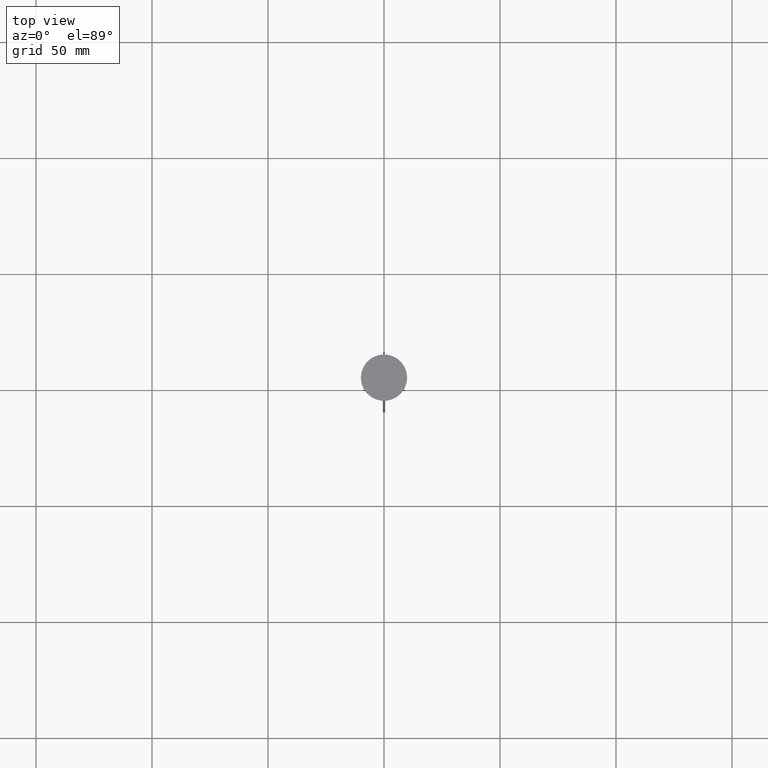
[diagram: clean part render]
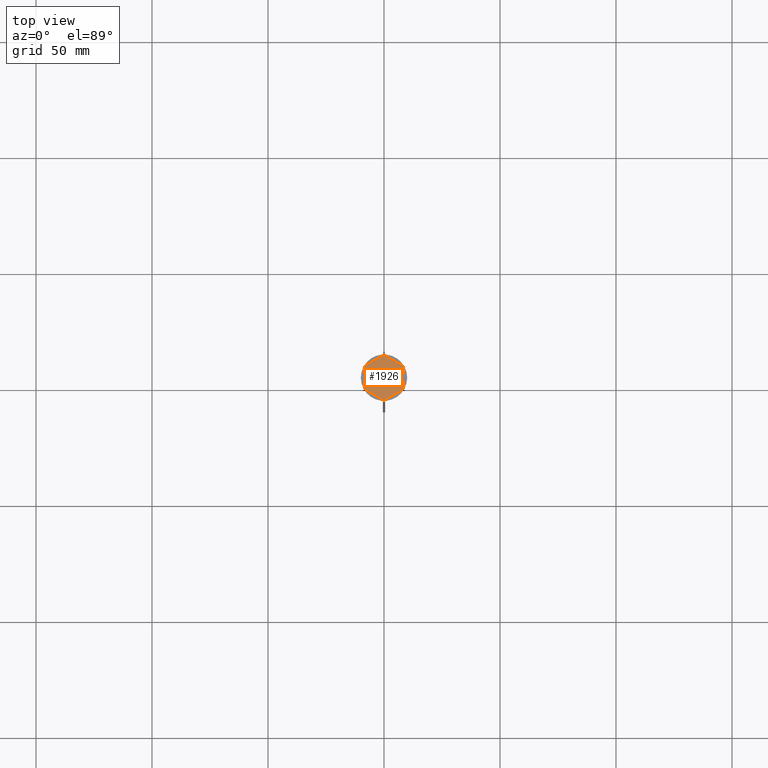
[diagram: same view with one face highlighted and labeled with its STEP entity id]
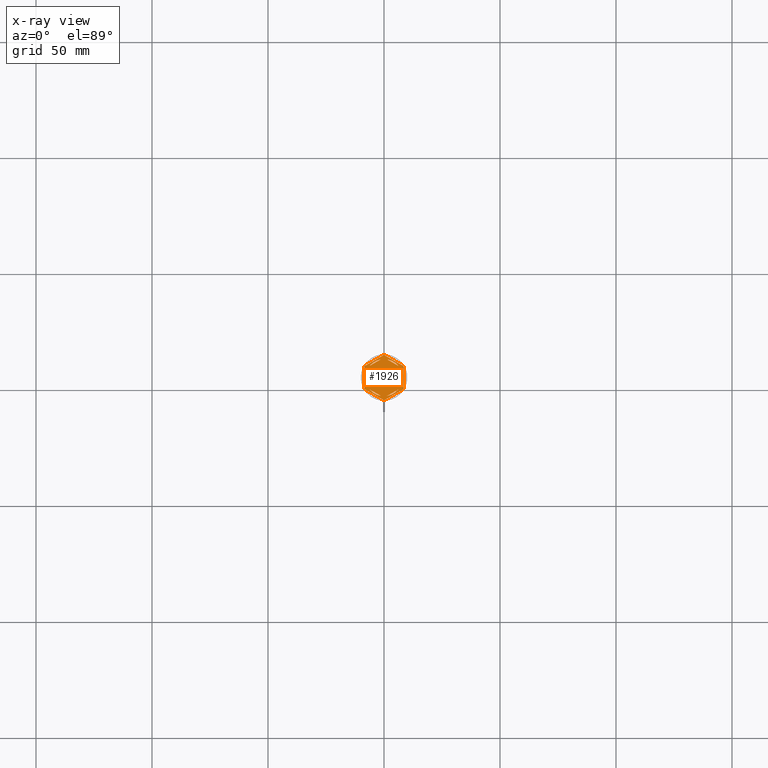
[diagram: x-ray of the same camera — body ghosted, the highlighted face saturated]
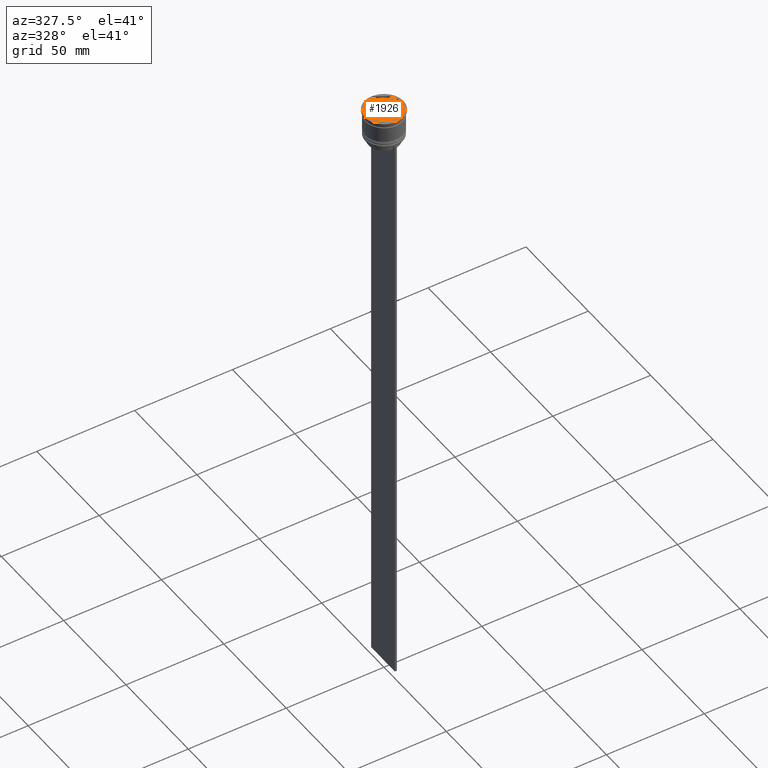
[diagram: same view with one face highlighted and labeled with its STEP entity id]
A machine part, top view. The second image highlights one B-rep face of the part: STEP entity #1926.
The next image is the same camera in x-ray: the body ghosted, the highlighted face saturated — about 0% of this face is hidden behind the body in this view.
A second angle (auxiliary view) of the same face is appended — the face is thin or edge-on in the first view.
In plain terms, the highlighted planar face has unit normal (0, 0, 1).
Its self-contained STEP definition (entity closure, byte-faithful):
#16 = ORIENTED_EDGE ( 'NONE', *, *, #903, .F. ) ;
#17 = EDGE_CURVE ( 'NONE', #455, #744, #2281, .T. ) ;
#34 = VECTOR ( 'NONE', #1490, 1000.000000000000114 ) ;
#56 = DIRECTION ( 'NONE',  ( 1.000000000000000000, 0.000000000000000000, 0.000000000000000000 ) ) ;
#78 = VERTEX_POINT ( 'NONE', #1576 ) ;
#90 = ORIENTED_EDGE ( 'NONE', *, *, #2183, .T. ) ;
#119 = VERTEX_POINT ( 'NONE', #1361 ) ;
#130 = LINE ( 'NONE', #708, #848 ) ;
#134 = VERTEX_POINT ( 'NONE', #310 ) ;
#141 = EDGE_CURVE ( 'NONE', #648, #1136, #1371, .T. ) ;
#148 = ORIENTED_EDGE ( 'NONE', *, *, #2667, .F. ) ;
#173 = EDGE_CURVE ( 'NONE', #329, #1937, #347, .T. ) ;
#178 = DIRECTION ( 'NONE',  ( -0.000000000000000000, -0.000000000000000000, -1.000000000000000000 ) ) ;
#185 = VERTEX_POINT ( 'NONE', #1588 ) ;
#211 = EDGE_CURVE ( 'NONE', #1826, #1136, #893, .T. ) ;
#227 = ORIENTED_EDGE ( 'NONE', *, *, #141, .T. ) ;
#248 = DIRECTION ( 'NONE',  ( 0.000000000000000000, 0.000000000000000000, 1.000000000000000000 ) ) ;
#262 = CARTESIAN_POINT ( 'NONE',  ( 0.000000000000000000, 0.000000000000000000, -1.000000000000000000 ) ) ;
#277 = DIRECTION ( 'NONE',  ( 1.000000000000000000, 0.000000000000000000, 0.000000000000000000 ) ) ;
#310 = CARTESIAN_POINT ( 'NONE',  ( 8.500000000000000000, -4.673328578219146934, -1.000000000000000000 ) ) ;
#313 = EDGE_CURVE ( 'NONE', #78, #2582, #381, .T. ) ;
#329 = VERTEX_POINT ( 'NONE', #2048 ) ;
#336 = VERTEX_POINT ( 'NONE', #2253 ) ;
#347 = LINE ( 'NONE', #1774, #1248 ) ;
#352 = DIRECTION ( 'NONE',  ( 0.8660254037844387076, -0.4999999999999997780, 0.000000000000000000 ) ) ;
#367 = ORIENTED_EDGE ( 'NONE', *, *, #1886, .F. ) ;
#381 = CIRCLE ( 'NONE', #1417, 9.699999999999990408 ) ;
#395 = FACE_OUTER_BOUND ( 'NONE', #740, .T. ) ;
#405 = CARTESIAN_POINT ( 'NONE',  ( 8.297221268969593666, 5.024551643058155825, -1.000000000000000000 ) ) ;
#421 = CARTESIAN_POINT ( 'NONE',  ( -7.500000000000000000, 2.783882181415010759, -1.000000000000000888 ) ) ;
#431 = ORIENTED_EDGE ( 'NONE', *, *, #1138, .F. ) ;
#433 = CIRCLE ( 'NONE', #988, 8.000000000000000000 ) ;
#455 = VERTEX_POINT ( 'NONE', #929 ) ;
#470 = EDGE_CURVE ( 'NONE', #1264, #1970, #1678, .T. ) ;
#479 = CARTESIAN_POINT ( 'NONE',  ( 8.297221268969593666, -5.024551643058152273, -1.000000000000000000 ) ) ;
#538 = VERTEX_POINT ( 'NONE', #1182 ) ;
#549 = ORIENTED_EDGE ( 'NONE', *, *, #2354, .F. ) ;
#551 = CARTESIAN_POINT ( 'NONE',  ( 0.000000000000000000, 0.000000000000000000, -1.000000000000000000 ) ) ;
#553 = CIRCLE ( 'NONE', #983, 8.000000000000000000 ) ;
#555 = LINE ( 'NONE', #1770, #1122 ) ;
#557 = AXIS2_PLACEMENT_3D ( 'NONE', #1445, #2458, #1623 ) ;
#574 = EDGE_CURVE ( 'NONE', #2342, #185, #555, .T. ) ;
#575 = DIRECTION ( 'NONE',  ( 1.000000000000000000, 2.486899575160350651E-14, 0.000000000000000000 ) ) ;
#580 = CARTESIAN_POINT ( 'NONE',  ( -6.160912690248241397, 5.103249437675783540, -1.000000000000000888 ) ) ;
#583 = DIRECTION ( 'NONE',  ( -0.000000000000000000, -0.000000000000000000, -1.000000000000000000 ) ) ;
#584 = CARTESIAN_POINT ( 'NONE',  ( 0.000000000000000000, 0.000000000000000000, -1.000000000000000000 ) ) ;
#598 = AXIS2_PLACEMENT_3D ( 'NONE', #1259, #2277, #655 ) ;
#618 = FACE_BOUND ( 'NONE', #1097, .T. ) ;
#626 = DIRECTION ( 'NONE',  ( -2.003086131649545704E-16, -1.000000000000000000, 0.000000000000000000 ) ) ;
#627 = VERTEX_POINT ( 'NONE', #580 ) ;
#648 = VERTEX_POINT ( 'NONE', #405 ) ;
#652 = LINE ( 'NONE', #2507, #2280 ) ;
#654 = CARTESIAN_POINT ( 'NONE',  ( 0.000000000000000000, 0.000000000000000000, -1.000000000000000000 ) ) ;
#655 = DIRECTION ( 'NONE',  ( 1.000000000000000000, 0.000000000000000000, 0.000000000000000000 ) ) ;
#668 = DIRECTION ( 'NONE',  ( 1.000000000000000000, 0.000000000000000000, 0.000000000000000000 ) ) ;
#673 = EDGE_CURVE ( 'NONE', #134, #834, #1253, .T. ) ;
#686 = VECTOR ( 'NONE', #1768, 1000.000000000000000 ) ;
#695 = ORIENTED_EDGE ( 'NONE', *, *, #574, .F. ) ;
#699 = EDGE_CURVE ( 'NONE', #78, #1644, #1055, .T. ) ;
#708 = CARTESIAN_POINT ( 'NONE',  ( 8.729740977282959667E-16, -9.814954576223637872, -1.000000000000000000 ) ) ;
#740 = EDGE_LOOP ( 'NONE', ( #2403, #871, #227, #2269, #1828, #1673, #1622, #2324, #90, #148, #2096, #2164 ) ) ;
#744 = VERTEX_POINT ( 'NONE', #2101 ) ;
#745 = CARTESIAN_POINT ( 'NONE',  ( -1.339087309751759047, 7.887131619090796519, -1.000000000000000888 ) ) ;
#756 = VECTOR ( 'NONE', #2474, 999.9999999999998863 ) ;
#786 = FACE_BOUND ( 'NONE', #2138, .T. ) ;
#810 = VERTEX_POINT ( 'NONE', #1086 ) ;
#818 = PLANE ( 'NONE',  #2240 ) ;
#834 = VERTEX_POINT ( 'NONE', #479 ) ;
#842 = FACE_BOUND ( 'NONE', #2071, .T. ) ;
#843 = EDGE_CURVE ( 'NONE', #1937, #538, #852, .T. ) ;
#848 = VECTOR ( 'NONE', #1159, 1000.000000000000227 ) ;
#852 = CIRCLE ( 'NONE', #2375, 8.000000000000000000 ) ;
#868 = CARTESIAN_POINT ( 'NONE',  ( 0.000000000000000000, 0.000000000000000000, -1.000000000000000000 ) ) ;
#871 = ORIENTED_EDGE ( 'NONE', *, *, #1402, .F. ) ;
#885 = EDGE_LOOP ( 'NONE', ( #1581, #2184, #2592 ) ) ;
#893 = CIRCLE ( 'NONE', #1372, 9.699999999999990408 ) ;
#903 = EDGE_CURVE ( 'NONE', #1970, #1264, #2139, .T. ) ;
#916 = CARTESIAN_POINT ( 'NONE',  ( -7.500000000000000000, -4.330127018922193649, -1.000000000000000888 ) ) ;
#921 = CARTESIAN_POINT ( 'NONE',  ( -8.297221268969593666, 5.024551643058155825, -1.000000000000000000 ) ) ;
#929 = CARTESIAN_POINT ( 'NONE',  ( 1.339087309751762156, -7.887131619090794743, -1.000000000000000888 ) ) ;
#939 = VECTOR ( 'NONE', #626, 1000.000000000000000 ) ;
#941 = CARTESIAN_POINT ( 'NONE',  ( 8.500000000000000000, -4.907477288111818936, -1.000000000000000000 ) ) ;
#968 = VERTEX_POINT ( 'NONE', #2654 ) ;
#972 = EDGE_LOOP ( 'NONE', ( #2008, #695 ) ) ;
#983 = AXIS2_PLACEMENT_3D ( 'NONE', #1858, #2661, #2037 ) ;
#988 = AXIS2_PLACEMENT_3D ( 'NONE', #551, #1036, #1061 ) ;
#1006 = CARTESIAN_POINT ( 'NONE',  ( 0.000000000000000000, 0.000000000000000000, -1.000000000000000000 ) ) ;
#1034 = AXIS2_PLACEMENT_3D ( 'NONE', #2437, #583, #1215 ) ;
#1036 = DIRECTION ( 'NONE',  ( 0.000000000000000000, 0.000000000000000000, 1.000000000000000000 ) ) ;
#1040 = LINE ( 'NONE', #1861, #756 ) ;
#1048 = CARTESIAN_POINT ( 'NONE',  ( 0.2027787310304044188, -9.697880221277303647, -1.000000000000000000 ) ) ;
#1051 = VERTEX_POINT ( 'NONE', #1069 ) ;
#1055 = LINE ( 'NONE', #1848, #2074 ) ;
#1061 = DIRECTION ( 'NONE',  ( 1.000000000000000000, 0.000000000000000000, 0.000000000000000000 ) ) ;
#1066 = DIRECTION ( 'NONE',  ( 0.000000000000000000, 0.000000000000000000, 1.000000000000000000 ) ) ;
#1069 = CARTESIAN_POINT ( 'NONE',  ( -0.2027787310304044188, -9.697880221277303647, -1.000000000000000000 ) ) ;
#1073 = AXIS2_PLACEMENT_3D ( 'NONE', #868, #1701, #668 ) ;
#1086 = CARTESIAN_POINT ( 'NONE',  ( -8.297221268969593666, -5.024551643058157602, -1.000000000000000000 ) ) ;
#1097 = EDGE_LOOP ( 'NONE', ( #1456, #431 ) ) ;
#1111 = DIRECTION ( 'NONE',  ( 0.000000000000000000, 0.000000000000000000, 1.000000000000000000 ) ) ;
#1122 = VECTOR ( 'NONE', #2587, 1000.000000000000000 ) ;
#1136 = VERTEX_POINT ( 'NONE', #1450 ) ;
#1138 = EDGE_CURVE ( 'NONE', #744, #455, #652, .T. ) ;
#1159 = DIRECTION ( 'NONE',  ( 0.8660254037844385966, 0.5000000000000000000, 0.000000000000000000 ) ) ;
#1175 = CARTESIAN_POINT ( 'NONE',  ( 8.500000000000000000, 4.907477288111819824, -1.000000000000000000 ) ) ;
#1182 = CARTESIAN_POINT ( 'NONE',  ( -8.000000000000000000, 0.000000000000000000, -1.000000000000000000 ) ) ;
#1215 = DIRECTION ( 'NONE',  ( 1.000000000000000000, 0.000000000000000000, 0.000000000000000000 ) ) ;
#1225 = FACE_BOUND ( 'NONE', #972, .T. ) ;
#1237 = EDGE_LOOP ( 'NONE', ( #2433, #367 ) ) ;
#1248 = VECTOR ( 'NONE', #2416, 1000.000000000000000 ) ;
#1249 = DIRECTION ( 'NONE',  ( 1.000000000000000000, 0.000000000000000000, 0.000000000000000000 ) ) ;
#1252 = CIRCLE ( 'NONE', #1377, 9.699999999999990408 ) ;
#1253 = CIRCLE ( 'NONE', #557, 9.699999999999990408 ) ;
#1259 = CARTESIAN_POINT ( 'NONE',  ( 0.000000000000000000, 0.000000000000000000, -1.000000000000000000 ) ) ;
#1264 = VERTEX_POINT ( 'NONE', #2537 ) ;
#1294 = VECTOR ( 'NONE', #2565, 1000.000000000000000 ) ;
#1303 = CIRCLE ( 'NONE', #1034, 9.699999999999990408 ) ;
#1361 = CARTESIAN_POINT ( 'NONE',  ( 7.500000000000001776, 2.783882181415006762, -1.000000000000000888 ) ) ;
#1371 = LINE ( 'NONE', #1175, #1294 ) ;
#1372 = AXIS2_PLACEMENT_3D ( 'NONE', #1006, #1655, #575 ) ;
#1377 = AXIS2_PLACEMENT_3D ( 'NONE', #1865, #178, #1249 ) ;
#1400 = DIRECTION ( 'NONE',  ( -0.000000000000000000, -0.000000000000000000, -1.000000000000000000 ) ) ;
#1402 = EDGE_CURVE ( 'NONE', #648, #336, #2536, .T. ) ;
#1417 = AXIS2_PLACEMENT_3D ( 'NONE', #584, #1400, #2236 ) ;
#1445 = CARTESIAN_POINT ( 'NONE',  ( 0.000000000000000000, 0.000000000000000000, -1.000000000000000000 ) ) ;
#1446 = FACE_BOUND ( 'NONE', #885, .T. ) ;
#1449 = EDGE_CURVE ( 'NONE', #627, #2327, #1040, .T. ) ;
#1450 = CARTESIAN_POINT ( 'NONE',  ( 0.2027787310304000890, 9.697880221277303647, -1.000000000000000000 ) ) ;
#1451 = DIRECTION ( 'NONE',  ( 1.000000000000000000, 0.000000000000000000, 0.000000000000000000 ) ) ;
#1456 = ORIENTED_EDGE ( 'NONE', *, *, #17, .F. ) ;
#1463 = VECTOR ( 'NONE', #352, 1000.000000000000114 ) ;
#1478 = CARTESIAN_POINT ( 'NONE',  ( 0.000000000000000000, 9.814954576223636096, -1.000000000000000000 ) ) ;
#1490 = DIRECTION ( 'NONE',  ( -0.8660254037844387076, -0.4999999999999997780, 0.000000000000000000 ) ) ;
#1523 = CARTESIAN_POINT ( 'NONE',  ( 0.000000000000000000, 0.000000000000000000, -1.000000000000000000 ) ) ;
#1536 = EDGE_CURVE ( 'NONE', #1826, #2582, #1690, .T. ) ;
#1576 = CARTESIAN_POINT ( 'NONE',  ( -8.500000000000000000, 4.673328578219146934, -1.000000000000000000 ) ) ;
#1581 = ORIENTED_EDGE ( 'NONE', *, *, #843, .F. ) ;
#1588 = CARTESIAN_POINT ( 'NONE',  ( 6.160912690248237844, 5.103249437675785316, -1.000000000000000888 ) ) ;
#1619 = CARTESIAN_POINT ( 'NONE',  ( -0.2027787310304009494, 9.697880221277303647, -1.000000000000000000 ) ) ;
#1622 = ORIENTED_EDGE ( 'NONE', *, *, #699, .T. ) ;
#1623 = DIRECTION ( 'NONE',  ( 1.000000000000000000, 0.000000000000000000, 0.000000000000000000 ) ) ;
#1624 = DIRECTION ( 'NONE',  ( 0.000000000000000000, 0.000000000000000000, 1.000000000000000000 ) ) ;
#1644 = VERTEX_POINT ( 'NONE', #1958 ) ;
#1647 = DIRECTION ( 'NONE',  ( -0.000000000000000000, -0.000000000000000000, -1.000000000000000000 ) ) ;
#1651 = DIRECTION ( 'NONE',  ( 0.000000000000000000, -1.000000000000000000, 0.000000000000000000 ) ) ;
#1655 = DIRECTION ( 'NONE',  ( -0.000000000000000000, -0.000000000000000000, -1.000000000000000000 ) ) ;
#1661 = CARTESIAN_POINT ( 'NONE',  ( 0.000000000000000000, 0.000000000000000000, -1.000000000000000000 ) ) ;
#1673 = ORIENTED_EDGE ( 'NONE', *, *, #313, .F. ) ;
#1678 = CIRCLE ( 'NONE', #1799, 8.000000000000000000 ) ;
#1690 = LINE ( 'NONE', #1478, #34 ) ;
#1701 = DIRECTION ( 'NONE',  ( 0.000000000000000000, 0.000000000000000000, 1.000000000000000000 ) ) ;
#1703 = ORIENTED_EDGE ( 'NONE', *, *, #470, .F. ) ;
#1715 = EDGE_CURVE ( 'NONE', #2431, #834, #130, .T. ) ;
#1739 = DIRECTION ( 'NONE',  ( -0.8660254037844384856, 0.5000000000000002220, 0.000000000000000000 ) ) ;
#1768 = DIRECTION ( 'NONE',  ( 0.000000000000000000, 1.000000000000000000, 0.000000000000000000 ) ) ;
#1770 = CARTESIAN_POINT ( 'NONE',  ( 7.500000000000001776, 4.330127018922192761, -1.000000000000000888 ) ) ;
#1774 = CARTESIAN_POINT ( 'NONE',  ( -7.500000000000000000, 4.330127018922190985, -1.000000000000000888 ) ) ;
#1788 = CARTESIAN_POINT ( 'NONE',  ( -8.500000000000000000, -4.907477288111819824, -1.000000000000000000 ) ) ;
#1799 = AXIS2_PLACEMENT_3D ( 'NONE', #654, #248, #1451 ) ;
#1802 = CIRCLE ( 'NONE', #1893, 8.000000000000000000 ) ;
#1826 = VERTEX_POINT ( 'NONE', #1619 ) ;
#1828 = ORIENTED_EDGE ( 'NONE', *, *, #1536, .T. ) ;
#1848 = CARTESIAN_POINT ( 'NONE',  ( -8.500000000000000000, 4.907477288111818936, -1.000000000000000000 ) ) ;
#1854 = EDGE_CURVE ( 'NONE', #968, #119, #553, .T. ) ;
#1858 = CARTESIAN_POINT ( 'NONE',  ( 0.000000000000000000, 0.000000000000000000, -1.000000000000000000 ) ) ;
#1861 = CARTESIAN_POINT ( 'NONE',  ( 8.673617379884035472E-16, 8.660254037844385522, -1.000000000000000888 ) ) ;
#1865 = CARTESIAN_POINT ( 'NONE',  ( 0.000000000000000000, 0.000000000000000000, -1.000000000000000000 ) ) ;
#1886 = EDGE_CURVE ( 'NONE', #119, #968, #2065, .T. ) ;
#1893 = AXIS2_PLACEMENT_3D ( 'NONE', #262, #1111, #56 ) ;
#1898 = DIRECTION ( 'NONE',  ( -0.8660254037844387076, -0.4999999999999997780, 0.000000000000000000 ) ) ;
#1926 = ADVANCED_FACE ( 'NONE', ( #1225, #2031, #618, #842, #1446, #786, #395 ), #818, .T. ) ;
#1937 = VERTEX_POINT ( 'NONE', #421 ) ;
#1949 = EDGE_CURVE ( 'NONE', #810, #1644, #1252, .T. ) ;
#1958 = CARTESIAN_POINT ( 'NONE',  ( -8.500000000000000000, -4.673328578219146934, -1.000000000000000000 ) ) ;
#1970 = VERTEX_POINT ( 'NONE', #2055 ) ;
#2003 = LINE ( 'NONE', #1788, #1463 ) ;
#2008 = ORIENTED_EDGE ( 'NONE', *, *, #2100, .F. ) ;
#2031 = FACE_BOUND ( 'NONE', #1237, .T. ) ;
#2037 = DIRECTION ( 'NONE',  ( 1.000000000000000000, 0.000000000000000000, 0.000000000000000000 ) ) ;
#2048 = CARTESIAN_POINT ( 'NONE',  ( -7.500000000000000000, -2.783882181415010759, -1.000000000000000888 ) ) ;
#2055 = CARTESIAN_POINT ( 'NONE',  ( -1.339087309751766819, -7.887131619090794743, -1.000000000000000888 ) ) ;
#2065 = LINE ( 'NONE', #2472, #939 ) ;
#2071 = EDGE_LOOP ( 'NONE', ( #1703, #16 ) ) ;
#2074 = VECTOR ( 'NONE', #1651, 1000.000000000000000 ) ;
#2096 = ORIENTED_EDGE ( 'NONE', *, *, #1715, .T. ) ;
#2100 = EDGE_CURVE ( 'NONE', #185, #2342, #1802, .T. ) ;
#2101 = CARTESIAN_POINT ( 'NONE',  ( 6.160912690248236068, -5.103249437675787981, -1.000000000000000888 ) ) ;
#2138 = EDGE_LOOP ( 'NONE', ( #549, #2390 ) ) ;
#2139 = LINE ( 'NONE', #916, #2620 ) ;
#2164 = ORIENTED_EDGE ( 'NONE', *, *, #673, .F. ) ;
#2183 = EDGE_CURVE ( 'NONE', #810, #1051, #2003, .T. ) ;
#2184 = ORIENTED_EDGE ( 'NONE', *, *, #173, .F. ) ;
#2233 = CARTESIAN_POINT ( 'NONE',  ( 0.000000000000000000, 0.000000000000000000, -1.000000000000000000 ) ) ;
#2236 = DIRECTION ( 'NONE',  ( 1.000000000000000000, 0.000000000000000000, 0.000000000000000000 ) ) ;
#2240 = AXIS2_PLACEMENT_3D ( 'NONE', #2233, #1624, #2652 ) ;
#2253 = CARTESIAN_POINT ( 'NONE',  ( 8.500000000000000000, 4.673328578219146934, -1.000000000000000000 ) ) ;
#2269 = ORIENTED_EDGE ( 'NONE', *, *, #211, .F. ) ;
#2275 = EDGE_CURVE ( 'NONE', #134, #336, #2367, .T. ) ;
#2277 = DIRECTION ( 'NONE',  ( 0.000000000000000000, 0.000000000000000000, 1.000000000000000000 ) ) ;
#2280 = VECTOR ( 'NONE', #1898, 1000.000000000000114 ) ;
#2281 = CIRCLE ( 'NONE', #1073, 8.000000000000000000 ) ;
#2284 = DIRECTION ( 'NONE',  ( 1.000000000000000000, 0.000000000000000000, 0.000000000000000000 ) ) ;
#2324 = ORIENTED_EDGE ( 'NONE', *, *, #1949, .F. ) ;
#2327 = VERTEX_POINT ( 'NONE', #745 ) ;
#2335 = EDGE_CURVE ( 'NONE', #538, #329, #433, .T. ) ;
#2337 = CIRCLE ( 'NONE', #598, 8.000000000000000000 ) ;
#2342 = VERTEX_POINT ( 'NONE', #2462 ) ;
#2354 = EDGE_CURVE ( 'NONE', #2327, #627, #2337, .T. ) ;
#2367 = LINE ( 'NONE', #941, #686 ) ;
#2375 = AXIS2_PLACEMENT_3D ( 'NONE', #1523, #1066, #277 ) ;
#2390 = ORIENTED_EDGE ( 'NONE', *, *, #1449, .F. ) ;
#2403 = ORIENTED_EDGE ( 'NONE', *, *, #2275, .T. ) ;
#2416 = DIRECTION ( 'NONE',  ( 0.000000000000000000, 1.000000000000000000, 0.000000000000000000 ) ) ;
#2431 = VERTEX_POINT ( 'NONE', #1048 ) ;
#2433 = ORIENTED_EDGE ( 'NONE', *, *, #1854, .F. ) ;
#2437 = CARTESIAN_POINT ( 'NONE',  ( 0.000000000000000000, 0.000000000000000000, -1.000000000000000000 ) ) ;
#2458 = DIRECTION ( 'NONE',  ( -0.000000000000000000, -0.000000000000000000, -1.000000000000000000 ) ) ;
#2462 = CARTESIAN_POINT ( 'NONE',  ( 1.339087309751760380, 7.887131619090794743, -1.000000000000000888 ) ) ;
#2472 = CARTESIAN_POINT ( 'NONE',  ( 7.500000000000000000, -4.330127018922195425, -1.000000000000000888 ) ) ;
#2474 = DIRECTION ( 'NONE',  ( 0.8660254037844387076, 0.5000000000000001110, -0.000000000000000000 ) ) ;
#2492 = AXIS2_PLACEMENT_3D ( 'NONE', #1661, #1647, #2284 ) ;
#2507 = CARTESIAN_POINT ( 'NONE',  ( -1.301042606982605321E-15, -8.660254037844387298, -1.000000000000000888 ) ) ;
#2536 = CIRCLE ( 'NONE', #2492, 9.699999999999990408 ) ;
#2537 = CARTESIAN_POINT ( 'NONE',  ( -6.160912690248237844, -5.103249437675787092, -1.000000000000000888 ) ) ;
#2565 = DIRECTION ( 'NONE',  ( -0.8660254037844388186, 0.4999999999999997224, 0.000000000000000000 ) ) ;
#2582 = VERTEX_POINT ( 'NONE', #921 ) ;
#2587 = DIRECTION ( 'NONE',  ( 0.8660254037844387076, -0.4999999999999998890, 0.000000000000000000 ) ) ;
#2592 = ORIENTED_EDGE ( 'NONE', *, *, #2335, .F. ) ;
#2620 = VECTOR ( 'NONE', #1739, 1000.000000000000114 ) ;
#2652 = DIRECTION ( 'NONE',  ( 1.000000000000000000, 0.000000000000000000, -0.000000000000000000 ) ) ;
#2654 = CARTESIAN_POINT ( 'NONE',  ( 7.500000000000000000, -2.783882181415009427, -1.000000000000000888 ) ) ;
#2661 = DIRECTION ( 'NONE',  ( 0.000000000000000000, 0.000000000000000000, 1.000000000000000000 ) ) ;
#2667 = EDGE_CURVE ( 'NONE', #2431, #1051, #1303, .T. ) ;